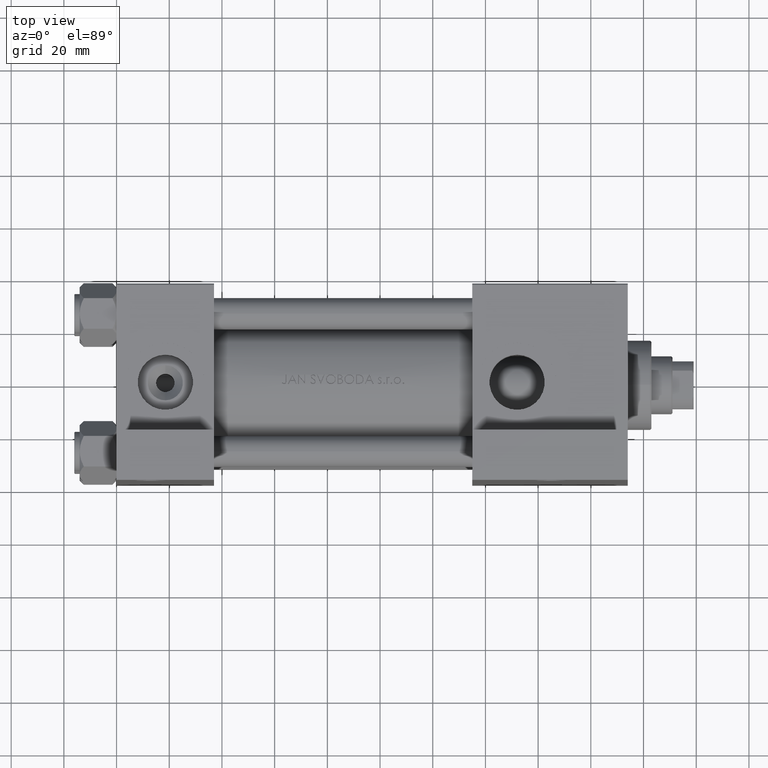
[diagram: clean part render]
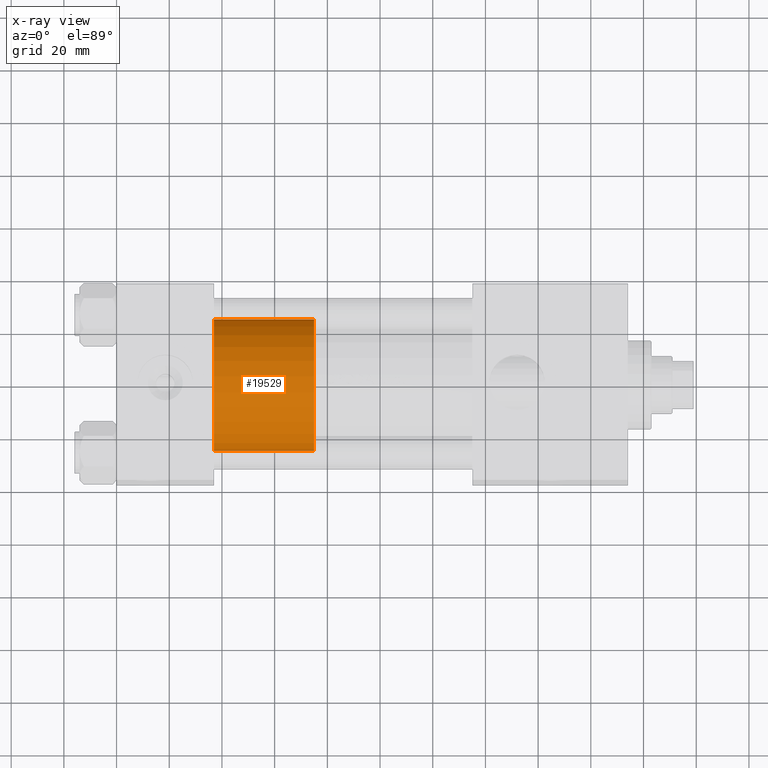
[diagram: x-ray — body ghosted, one internal face saturated and labeled with its STEP entity id]
A machine part, top view, then the same camera in x-ray: the body is ghosted and one INTERNAL B-rep face — a face not visible from any outside direction — is saturated and labeled: STEP entity #19529.
In plain terms, the highlighted cylindrical surface (partial cylindrical patch) has radius 25 mm, axis along (-1, 0, 0).
Its self-contained STEP definition (entity closure, byte-faithful):
#2244 = ORIENTED_EDGE ( 'NONE', *, *, #38947, .T. ) ;
#2597 = CIRCLE ( 'NONE', #34448, 25.00000000000000000 ) ;
#4073 = DIRECTION ( 'NONE',  ( 0.000000000000000000, 0.000000000000000000, 1.000000000000000000 ) ) ;
#5215 = DIRECTION ( 'NONE',  ( -0.000000000000000000, -0.000000000000000000, -1.000000000000000000 ) ) ;
#5373 = DIRECTION ( 'NONE',  ( -0.000000000000000000, -0.000000000000000000, -1.000000000000000000 ) ) ;
#9109 = LINE ( 'NONE', #39248, #48019 ) ;
#9535 = EDGE_CURVE ( 'NONE', #10184, #40753, #35117, .T. ) ;
#10184 = VERTEX_POINT ( 'NONE', #38362 ) ;
#12669 = VERTEX_POINT ( 'NONE', #45372 ) ;
#16297 = CIRCLE ( 'NONE', #21057, 25.00000000000000000 ) ;
#16630 = FACE_OUTER_BOUND ( 'NONE', #27196, .T. ) ;
#16863 = DIRECTION ( 'NONE',  ( -0.000000000000000000, -0.000000000000000000, -1.000000000000000000 ) ) ;
#19529 = ADVANCED_FACE ( 'NONE', ( #16630 ), #35090, .T. ) ;
#20224 = DIRECTION ( 'NONE',  ( 1.000000000000000000, 0.000000000000000000, 0.000000000000000000 ) ) ;
#20803 = EDGE_CURVE ( 'NONE', #27747, #12669, #9109, .T. ) ;
#21057 = AXIS2_PLACEMENT_3D ( 'NONE', #31442, #4073, #20224 ) ;
#21670 = AXIS2_PLACEMENT_3D ( 'NONE', #42807, #16863, #38837 ) ;
#25562 = CARTESIAN_POINT ( 'NONE',  ( -25.00000000000000000, 0.000000000000000000, 0.000000000000000000 ) ) ;
#27196 = EDGE_LOOP ( 'NONE', ( #30542, #35846, #34265, #2244 ) ) ;
#27747 = VERTEX_POINT ( 'NONE', #39796 ) ;
#30542 = ORIENTED_EDGE ( 'NONE', *, *, #20803, .F. ) ;
#31442 = CARTESIAN_POINT ( 'NONE',  ( 0.000000000000000000, 0.000000000000000000, 38.00000000000000000 ) ) ;
#34265 = ORIENTED_EDGE ( 'NONE', *, *, #9535, .T. ) ;
#34448 = AXIS2_PLACEMENT_3D ( 'NONE', #42882, #42402, #35170 ) ;
#35090 = CYLINDRICAL_SURFACE ( 'NONE', #21670, 25.00000000000000000 ) ;
#35117 = LINE ( 'NONE', #39332, #45186 ) ;
#35170 = DIRECTION ( 'NONE',  ( 1.000000000000000000, 0.000000000000000000, 0.000000000000000000 ) ) ;
#35846 = ORIENTED_EDGE ( 'NONE', *, *, #48227, .F. ) ;
#38362 = CARTESIAN_POINT ( 'NONE',  ( -25.00000000000000000, 0.000000000000000000, 38.00000000000000000 ) ) ;
#38837 = DIRECTION ( 'NONE',  ( -1.000000000000000000, 0.000000000000000000, 0.000000000000000000 ) ) ;
#38947 = EDGE_CURVE ( 'NONE', #40753, #12669, #2597, .T. ) ;
#39248 = CARTESIAN_POINT ( 'NONE',  ( 25.00000000000000000, 3.061616997868383043E-15, 38.00000000000000000 ) ) ;
#39332 = CARTESIAN_POINT ( 'NONE',  ( -25.00000000000000000, 0.000000000000000000, 38.00000000000000000 ) ) ;
#39796 = CARTESIAN_POINT ( 'NONE',  ( 25.00000000000000000, 3.061616997868383043E-15, 38.00000000000000000 ) ) ;
#40753 = VERTEX_POINT ( 'NONE', #25562 ) ;
#42402 = DIRECTION ( 'NONE',  ( 0.000000000000000000, 0.000000000000000000, 1.000000000000000000 ) ) ;
#42807 = CARTESIAN_POINT ( 'NONE',  ( 0.000000000000000000, 0.000000000000000000, 38.00000000000000000 ) ) ;
#42882 = CARTESIAN_POINT ( 'NONE',  ( 0.000000000000000000, 0.000000000000000000, 0.000000000000000000 ) ) ;
#45186 = VECTOR ( 'NONE', #5215, 1000.000000000000000 ) ;
#45372 = CARTESIAN_POINT ( 'NONE',  ( 25.00000000000000000, 3.061616997868383043E-15, 0.000000000000000000 ) ) ;
#48019 = VECTOR ( 'NONE', #5373, 1000.000000000000000 ) ;
#48227 = EDGE_CURVE ( 'NONE', #10184, #27747, #16297, .T. ) ;